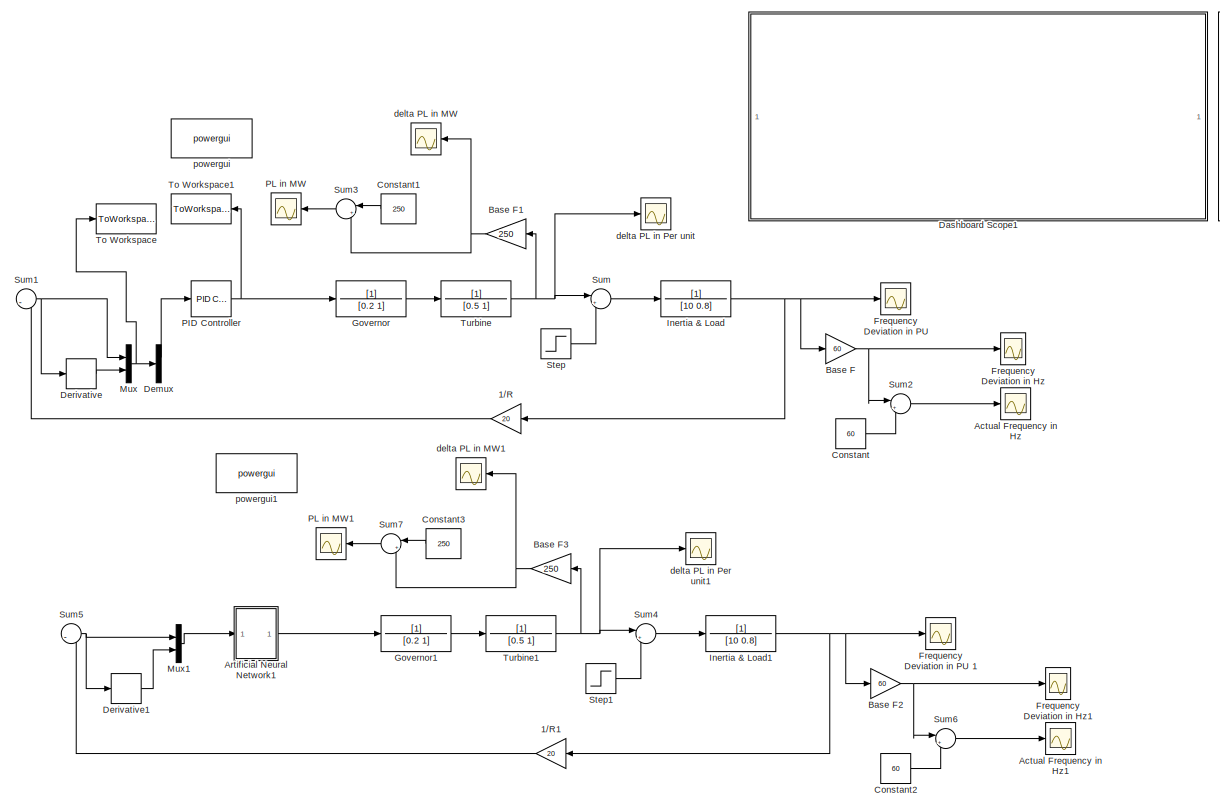
[diagram: root canvas - part 1/2, center side, full height]
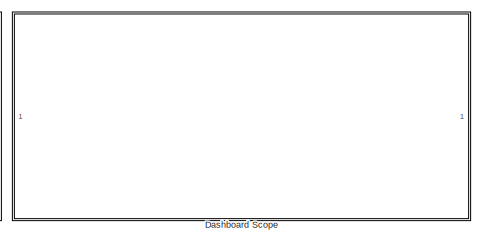
[diagram: root canvas - part 2/2, top right region]
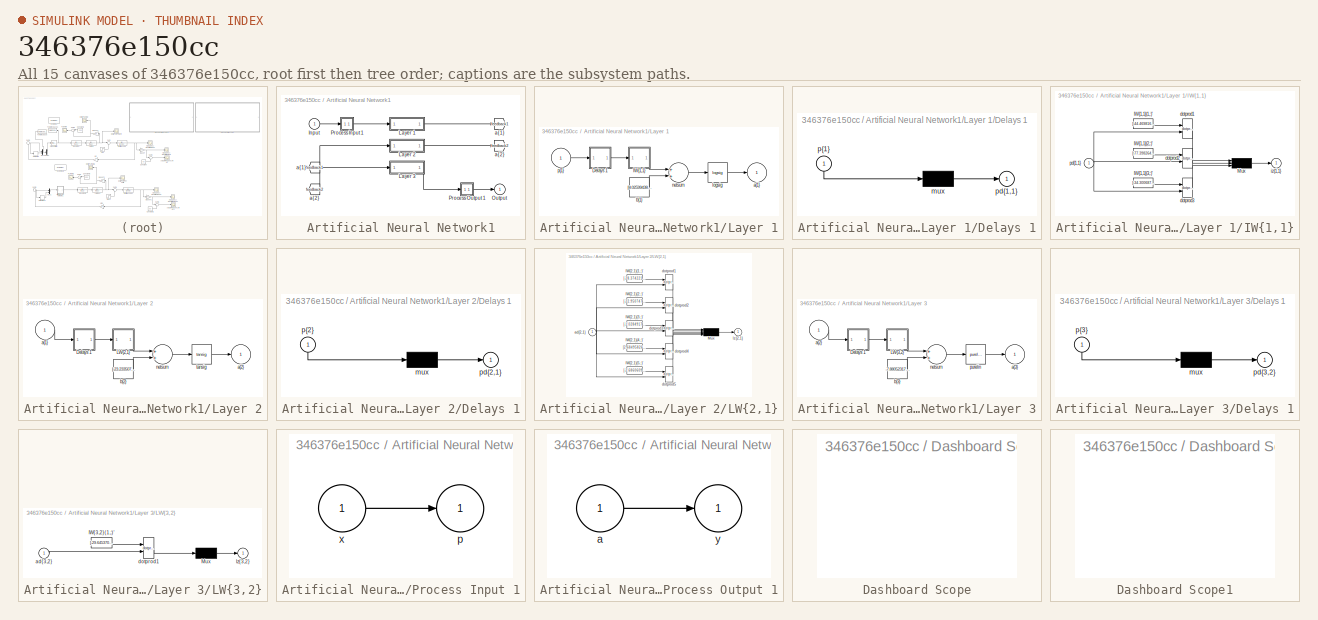
[diagram: thumbnail index - all 15 canvases of the model, root first then tree order]
MODEL slx_346376e150cc
KIND model
CONFIG AbsTol = auto
CONFIG EnableMultiTasking = off
CONFIG FixedStep = auto
CONFIG MaxStep = auto
CONFIG MinStep = auto
CONFIG RelTol = 1e-3
CONFIG SampleTimeConstraint = Unconstrained
CONFIG Solver = VariableStepAuto
CONFIG SolverName = VariableStepAuto
CONFIG StartTime = 0.0
CONFIG StopTime = 20
BLOCK [Gain] 1//R
  Gain = 20
  OutDataTypeStr = Inherit: Inherit via internal rule
  ParamDataTypeStr = Inherit: Inherit via internal rule
  SaturateOnIntegerOverflow = off
BLOCK [Gain] 1//R1
  Gain = 20
  OutDataTypeStr = Inherit: Inherit via internal rule
  ParamDataTypeStr = Inherit: Inherit via internal rule
  SaturateOnIntegerOverflow = off
BLOCK [Scope] Actual Frequency in Hz
  Floating = off
  NumInputPorts = 1
  Ports = [1]
  ScopeSpecificationString = Simulink.scopes.TimeScopeBlockCfg('CurrentConfiguration', extmgr.ConfigurationSet(extmgr.Configuration('Core','General UI',true),extmgr.Configuration('Core','Source UI',true),extmgr.Configuration('Sources','WiredSimulink',true,'DataLoggingVariableName','ScopeData1'),extmgr.Configuration('Visuals','Time Domain',true,'SerializedDisplays',{struct('MinYLimReal','59.23923','MaxYLimReal','60.08453','YLa...<+1369ch>
BLOCK [Scope] Actual Frequency in Hz1
  Floating = off
  NumInputPorts = 1
  Ports = [1]
  ScopeSpecificationString = Simulink.scopes.TimeScopeBlockCfg('CurrentConfiguration', extmgr.ConfigurationSet(extmgr.Configuration('Core','General UI',true),extmgr.Configuration('Core','Source UI',true),extmgr.Configuration('Sources','WiredSimulink',true,'DataLoggingVariableName','ScopeData1'),extmgr.Configuration('Visuals','Time Domain',true,'SerializedDisplays',{struct('MinYLimReal','59.23919','MaxYLimReal','60.08453','YLa...<+1369ch>
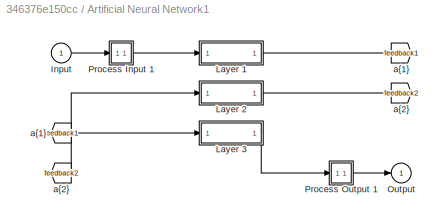
BLOCK [SubSystem] Artificial Neural Network1
  Ports = [1, 1]
  RequestExecContextInheritance = off
BLOCK [From] Artificial Neural Network1/ a{1} 
  GotoTag = feedback1
BLOCK [From] Artificial Neural Network1/ a{2} 
  GotoTag = feedback2
BLOCK [Inport] Artificial Neural Network1/Input
  IconDisplay = Port number
  PortDimensions = 2
BLOCK [SubSystem] Artificial Neural Network1/Layer 1
  Ports = [1, 1]
  RequestExecContextInheritance = off
BLOCK [SubSystem] Artificial Neural Network1/Layer 1/Delays 1
  Ports = [1, 1]
  RequestExecContextInheritance = off
BLOCK [Mux] Artificial Neural Network1/Layer 1/Delays 1/mux
  Inputs = 1
  Ports = [1, 1]
BLOCK [Outport] Artificial Neural Network1/Layer 1/Delays 1/pd{1,1}
  IconDisplay = Port number
BLOCK [Inport] Artificial Neural Network1/Layer 1/Delays 1/p{1}
  IconDisplay = Port number
  PortDimensions = 2
BLOCK [SubSystem] Artificial Neural Network1/Layer 1/IW{1,1}
  Ports = [1, 1]
  RequestExecContextInheritance = off
BLOCK [Constant] Artificial Neural Network1/Layer 1/IW{1,1}/IW{1,1}(1,:)'
  Value = [-44.4698160442586782892249175347387790679931640625;-6.704785247971184247717246762476861476898193359375]
BLOCK [Constant] Artificial Neural Network1/Layer 1/IW{1,1}/IW{1,1}(2,:)'
  Value = [-77.3982644433429385344425099901854991912841796875;12.31291218076491844612974091432988643646240234375]
BLOCK [Constant] Artificial Neural Network1/Layer 1/IW{1,1}/IW{1,1}(3,:)'
  Value = [-34.30068719563369228353622020222246646881103515625;-10.789528097987957977466066950000822544097900390625]
BLOCK [Mux] Artificial Neural Network1/Layer 1/IW{1,1}/Mux
  Inputs = 3
  Ports = [3, 1]
BLOCK [Reference] Artificial Neural Network1/Layer 1/IW{1,1}/dotprod1  REF=neural/Weight Functions/dotprod
  Ports = [2, 1]
  SourceBlock = neural/Weight Functions/dotprod
  SourceProductBaseCode = NN
  SourceProductName = Neural Network Toolbox
  SourceType = DOTPROD
BLOCK [Reference] Artificial Neural Network1/Layer 1/IW{1,1}/dotprod2  REF=neural/Weight Functions/dotprod
  Ports = [2, 1]
  SourceBlock = neural/Weight Functions/dotprod
  SourceProductBaseCode = NN
  SourceProductName = Neural Network Toolbox
  SourceType = DOTPROD
BLOCK [Reference] Artificial Neural Network1/Layer 1/IW{1,1}/dotprod3  REF=neural/Weight Functions/dotprod
  Ports = [2, 1]
  SourceBlock = neural/Weight Functions/dotprod
  SourceProductBaseCode = NN
  SourceProductName = Neural Network Toolbox
  SourceType = DOTPROD
BLOCK [Outport] Artificial Neural Network1/Layer 1/IW{1,1}/iz{1,1}
  IconDisplay = Port number
BLOCK [Inport] Artificial Neural Network1/Layer 1/IW{1,1}/pd{1,1}
  IconDisplay = Port number
  PortDimensions = 2
BLOCK [Outport] Artificial Neural Network1/Layer 1/a{1}
  IconDisplay = Port number
  InitialOutput = [0;0;0]
BLOCK [Constant] Artificial Neural Network1/Layer 1/b{1}
  Value = [8.0259943879730801796767991618253290653228759765625;-0.413920898447142082687832953524775803089141845703125;0.05236481898487994890434293893122230656445026397705078125]
BLOCK [Reference] Artificial Neural Network1/Layer 1/logsig  REF=neural/Transfer Functions/logsig
  Ports = [1, 1]
  SourceBlock = neural/Transfer Functions/logsig
  SourceProductBaseCode = NN
  SourceProductName = Neural Network Toolbox
  SourceType = LOGSIG
BLOCK [Sum] Artificial Neural Network1/Layer 1/netsum
  Inputs = 2
  Ports = [2, 1]
BLOCK [Inport] Artificial Neural Network1/Layer 1/p{1}
  IconDisplay = Port number
  PortDimensions = 2
BLOCK [SubSystem] Artificial Neural Network1/Layer 2
  Ports = [1, 1]
  RequestExecContextInheritance = off
BLOCK [SubSystem] Artificial Neural Network1/Layer 2/Delays 1
  Ports = [1, 1]
  RequestExecContextInheritance = off
BLOCK [Mux] Artificial Neural Network1/Layer 2/Delays 1/mux
  Inputs = 1
  Ports = [1, 1]
BLOCK [Outport] Artificial Neural Network1/Layer 2/Delays 1/pd{2,1}
  IconDisplay = Port number
BLOCK [Inport] Artificial Neural Network1/Layer 2/Delays 1/p{2}
  IconDisplay = Port number
  PortDimensions = 3
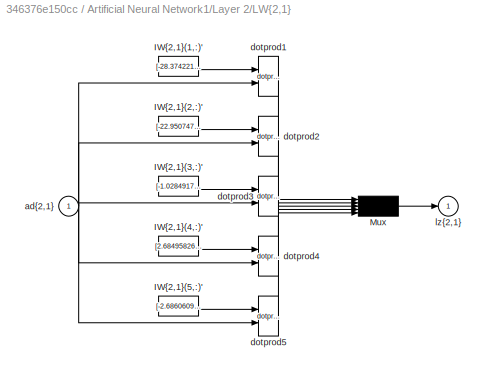
BLOCK [SubSystem] Artificial Neural Network1/Layer 2/LW{2,1}
  Ports = [1, 1]
  RequestExecContextInheritance = off
BLOCK [Constant] Artificial Neural Network1/Layer 2/LW{2,1}/IW{2,1}(1,:)'
  Value = [-28.37422126681368439449215657077729701995849609375;49.6088473045000455385888926684856414794921875;59.12111978188851679760773549787700176239013671875]
BLOCK [Constant] Artificial Neural Network1/Layer 2/LW{2,1}/IW{2,1}(2,:)'
  Value = [-22.9507474180967250276808044873178005218505859375;50.06399152652512185568411950953304767608642578125;59.62202442935639368215561262331902980804443359375]
BLOCK [Constant] Artificial Neural Network1/Layer 2/LW{2,1}/IW{2,1}(3,:)'
  Value = [-1.028491700531020125453096625278703868389129638671875;1.0548444530269189822746511708828620612621307373046875;4.0746148479657282592825140454806387424468994140625]
BLOCK [Constant] Artificial Neural Network1/Layer 2/LW{2,1}/IW{2,1}(4,:)'
  Value = [2.684958268117673352293195421225391328334808349609375;-1.1706233024163241740467356066801585257053375244140625;-3.777968547499659823785123080597259104251861572265625]
BLOCK [Constant] Artificial Neural Network1/Layer 2/LW{2,1}/IW{2,1}(5,:)'
  Value = [-2.686060979397518533318134359433315694332122802734375;-5.24214319065292055910276758368127048015594482421875;-9.6136112686197616739036675426177680492401123046875]
BLOCK [Mux] Artificial Neural Network1/Layer 2/LW{2,1}/Mux
  Inputs = 5
  Ports = [5, 1]
BLOCK [Inport] Artificial Neural Network1/Layer 2/LW{2,1}/ad{2,1}
  IconDisplay = Port number
  PortDimensions = 3
BLOCK [Reference] Artificial Neural Network1/Layer 2/LW{2,1}/dotprod1  REF=neural/Weight Functions/dotprod
  Ports = [2, 1]
  SourceBlock = neural/Weight Functions/dotprod
  SourceProductBaseCode = NN
  SourceProductName = Neural Network Toolbox
  SourceType = DOTPROD
BLOCK [Reference] Artificial Neural Network1/Layer 2/LW{2,1}/dotprod2  REF=neural/Weight Functions/dotprod
  Ports = [2, 1]
  SourceBlock = neural/Weight Functions/dotprod
  SourceProductBaseCode = NN
  SourceProductName = Neural Network Toolbox
  SourceType = DOTPROD
BLOCK [Reference] Artificial Neural Network1/Layer 2/LW{2,1}/dotprod3  REF=neural/Weight Functions/dotprod
  Ports = [2, 1]
  SourceBlock = neural/Weight Functions/dotprod
  SourceProductBaseCode = NN
  SourceProductName = Neural Network Toolbox
  SourceType = DOTPROD
BLOCK [Reference] Artificial Neural Network1/Layer 2/LW{2,1}/dotprod4  REF=neural/Weight Functions/dotprod
  Ports = [2, 1]
  SourceBlock = neural/Weight Functions/dotprod
  SourceProductBaseCode = NN
  SourceProductName = Neural Network Toolbox
  SourceType = DOTPROD
BLOCK [Reference] Artificial Neural Network1/Layer 2/LW{2,1}/dotprod5  REF=neural/Weight Functions/dotprod
  Ports = [2, 1]
  SourceBlock = neural/Weight Functions/dotprod
  SourceProductBaseCode = NN
  SourceProductName = Neural Network Toolbox
  SourceType = DOTPROD
BLOCK [Outport] Artificial Neural Network1/Layer 2/LW{2,1}/lz{2,1}
  IconDisplay = Port number
BLOCK [Inport] Artificial Neural Network1/Layer 2/a{1} 
  IconDisplay = Port number
  PortDimensions = 3
BLOCK [Outport] Artificial Neural Network1/Layer 2/a{2}
  IconDisplay = Port number
  InitialOutput = [0;0;0;0;0]
BLOCK [Constant] Artificial Neural Network1/Layer 2/b{2}
  Value = [-23.233507337629571765091895940713584423065185546875;-28.4702870967646362032610340975224971771240234375;-3.13457157216795767595840516150929033756256103515625;1.24505500083821463164213128038682043552398681640625;-1.2175821338483923117479434949927963316440582275390625]
BLOCK [Sum] Artificial Neural Network1/Layer 2/netsum
  Inputs = 2
  Ports = [2, 1]
BLOCK [Reference] Artificial Neural Network1/Layer 2/tansig  REF=neural/Transfer Functions/tansig
  Ports = [1, 1]
  SourceBlock = neural/Transfer Functions/tansig
  SourceProductBaseCode = NN
  SourceProductName = Neural Network Toolbox
  SourceType = TANSIG
BLOCK [SubSystem] Artificial Neural Network1/Layer 3
  Ports = [1, 1]
  RequestExecContextInheritance = off
BLOCK [SubSystem] Artificial Neural Network1/Layer 3/Delays 1
  Ports = [1, 1]
  RequestExecContextInheritance = off
BLOCK [Mux] Artificial Neural Network1/Layer 3/Delays 1/mux
  Inputs = 1
  Ports = [1, 1]
BLOCK [Outport] Artificial Neural Network1/Layer 3/Delays 1/pd{3,2}
  IconDisplay = Port number
BLOCK [Inport] Artificial Neural Network1/Layer 3/Delays 1/p{3}
  IconDisplay = Port number
  PortDimensions = 5
BLOCK [SubSystem] Artificial Neural Network1/Layer 3/LW{3,2}
  Ports = [1, 1]
  RequestExecContextInheritance = off
BLOCK [Constant] Artificial Neural Network1/Layer 3/LW{3,2}/IW{3,2}(1,:)'
  Value = [-29.645370634527598241447776672430336475372314453125;8.789806394185877280733620864339172840118408203125;13.4893734203719741771010376396588981151580810546875;10.649224522824564331813235185109078884124755859375;9.9280888007775889292361171101219952106475830078125]
BLOCK [Mux] Artificial Neural Network1/Layer 3/LW{3,2}/Mux
  Inputs = 1
  Ports = [1, 1]
BLOCK [Inport] Artificial Neural Network1/Layer 3/LW{3,2}/ad{3,2}
  IconDisplay = Port number
  PortDimensions = 5
BLOCK [Reference] Artificial Neural Network1/Layer 3/LW{3,2}/dotprod1  REF=neural/Weight Functions/dotprod
  Ports = [2, 1]
  SourceBlock = neural/Weight Functions/dotprod
  SourceProductBaseCode = NN
  SourceProductName = Neural Network Toolbox
  SourceType = DOTPROD
BLOCK [Outport] Artificial Neural Network1/Layer 3/LW{3,2}/lz{3,2}
  IconDisplay = Port number
BLOCK [Inport] Artificial Neural Network1/Layer 3/a{2} 
  IconDisplay = Port number
  PortDimensions = 5
BLOCK [Outport] Artificial Neural Network1/Layer 3/a{3}
  IconDisplay = Port number
  InitialOutput = 0
BLOCK [Constant] Artificial Neural Network1/Layer 3/b{3}
  Value = -7.88052317236014321366610602126456797122955322265625
BLOCK [Sum] Artificial Neural Network1/Layer 3/netsum
  Inputs = 2
  Ports = [2, 1]
BLOCK [Reference] Artificial Neural Network1/Layer 3/purelin  REF=neural/Transfer Functions/purelin
  Ports = [1, 1]
  SourceBlock = neural/Transfer Functions/purelin
  SourceProductBaseCode = NN
  SourceProductName = Neural Network Toolbox
  SourceType = PURELIN
BLOCK [Outport] Artificial Neural Network1/Output
  IconDisplay = Port number
  InitialOutput = 0
BLOCK [SubSystem] Artificial Neural Network1/Process Input 1
  Ports = [1, 1]
  RequestExecContextInheritance = off
BLOCK [Outport] Artificial Neural Network1/Process Input 1/p
  IconDisplay = Port number
  PortDimensions = 2
BLOCK [Inport] Artificial Neural Network1/Process Input 1/x
  IconDisplay = Port number
  PortDimensions = 2
BLOCK [SubSystem] Artificial Neural Network1/Process Output 1
  Ports = [1, 1]
  RequestExecContextInheritance = off
BLOCK [Inport] Artificial Neural Network1/Process Output 1/a
  IconDisplay = Port number
  PortDimensions = 1
BLOCK [Outport] Artificial Neural Network1/Process Output 1/y
  IconDisplay = Port number
  PortDimensions = 1
BLOCK [Goto] Artificial Neural Network1/a{1}
  GotoTag = feedback1
BLOCK [Goto] Artificial Neural Network1/a{2}
  GotoTag = feedback2
BLOCK [Gain] Base F
  Gain = 60
  OutDataTypeStr = Inherit: Inherit via internal rule
  ParamDataTypeStr = Inherit: Inherit via internal rule
  SaturateOnIntegerOverflow = off
BLOCK [Gain] Base F1
  Gain = 250
  OutDataTypeStr = Inherit: Inherit via internal rule
  ParamDataTypeStr = Inherit: Inherit via internal rule
  SaturateOnIntegerOverflow = off
BLOCK [Gain] Base F2
  Gain = 60
  OutDataTypeStr = Inherit: Inherit via internal rule
  ParamDataTypeStr = Inherit: Inherit via internal rule
  SaturateOnIntegerOverflow = off
BLOCK [Gain] Base F3
  Gain = 250
  OutDataTypeStr = Inherit: Inherit via internal rule
  ParamDataTypeStr = Inherit: Inherit via internal rule
  SaturateOnIntegerOverflow = off
BLOCK [Constant] Constant
  Value = 60
BLOCK [Constant] Constant1
  Value = 250
BLOCK [Constant] Constant2
  Value = 60
BLOCK [Constant] Constant3
  Value = 250
BLOCK [SubSystem] Dashboard Scope
  DialogController = hmiCreateDDGDialog
  IsWebBlock = on
  MaskHideContents = on
  Ports = []
  RequestExecContextInheritance = off
BLOCK [SubSystem] Dashboard Scope1
  DialogController = hmiCreateDDGDialog
  IsWebBlock = on
  MaskHideContents = on
  Ports = []
  RequestExecContextInheritance = off
BLOCK [Demux] Demux
  DisplayOption = bar
  Outputs = 2
  Ports = [1, 2]
BLOCK [Derivative] Derivative
BLOCK [Derivative] Derivative1
BLOCK [Scope] Frequency Deviation in Hz
  Floating = off
  NumInputPorts = 1
  Ports = [1]
  ScopeSpecificationString = Simulink.scopes.TimeScopeBlockCfg('CurrentConfiguration', extmgr.ConfigurationSet(extmgr.Configuration('Core','General UI',true),extmgr.Configuration('Core','Source UI',true),extmgr.Configuration('Sources','WiredSimulink',true,'DataLoggingVariableName','ScopeData1'),extmgr.Configuration('Visuals','Time Domain',true,'SerializedDisplays',{struct('MinYLimReal','-0.76077','MaxYLimReal','0.08453','YLab...<+1365ch>
BLOCK [Scope] Frequency Deviation in Hz1
  Floating = off
  NumInputPorts = 1
  Ports = [1]
  ScopeSpecificationString = Simulink.scopes.TimeScopeBlockCfg('CurrentConfiguration', extmgr.ConfigurationSet(extmgr.Configuration('Core','General UI',true),extmgr.Configuration('Core','Source UI',true),extmgr.Configuration('Sources','WiredSimulink',true,'DataLoggingVariableName','ScopeData2'),extmgr.Configuration('Visuals','Time Domain',true,'SerializedDisplays',{struct('MinYLimReal','-0.76081','MaxYLimReal','0.08453','YLab...<+1365ch>
BLOCK [Scope] Frequency Deviation in PU 
  Floating = off
  NumInputPorts = 1
  Ports = [1]
  ScopeSpecificationString = Simulink.scopes.TimeScopeBlockCfg('CurrentConfiguration', extmgr.ConfigurationSet(extmgr.Configuration('Core','General UI',true),extmgr.Configuration('Core','Source UI',true),extmgr.Configuration('Sources','WiredSimulink',true),extmgr.Configuration('Visuals','Time Domain',true,'SerializedDisplays',{struct('MinYLimReal','-0.01268','MaxYLimReal','0.00141','YLabelReal','','MinYLimMag','0.00000','MaxY...<+1334ch>
BLOCK [Scope] Frequency Deviation in PU 1
  Floating = off
  NumInputPorts = 1
  Ports = [1]
  ScopeSpecificationString = Simulink.scopes.TimeScopeBlockCfg('CurrentConfiguration', extmgr.ConfigurationSet(extmgr.Configuration('Core','General UI',true),extmgr.Configuration('Core','Source UI',true),extmgr.Configuration('Sources','WiredSimulink',true,'DataLoggingVariableName','ScopeData3'),extmgr.Configuration('Visuals','Time Domain',true,'SerializedDisplays',{struct('MinYLimReal','-0.01268','MaxYLimReal','0.00141','YLab...<+1373ch>
BLOCK [TransferFcn] Governor
  Denominator = [0.2 1]
BLOCK [TransferFcn] Governor1
  Denominator = [0.2 1]
BLOCK [TransferFcn] Inertia & Load
  Denominator = [10 0.8]
BLOCK [TransferFcn] Inertia & Load1
  Denominator = [10 0.8]
BLOCK [Mux] Mux
  DisplayOption = bar
  Inputs = 2
  Ports = [2, 1]
BLOCK [Mux] Mux1
  DisplayOption = bar
  Inputs = 2
  Ports = [2, 1]
BLOCK [Reference] PID Controller  REF=simulink/Continuous/PID Controller
  Ports = [1, 1]
  SourceBlock = simulink/Continuous/PID Controller
  SourceProductBaseCode = SL
  SourceProductName = Simulink
  SourceType = PID 1dof
BLOCK [Scope] PL in MW
  Floating = off
  NumInputPorts = 1
  Ports = [1]
  ScopeSpecificationString = Simulink.scopes.TimeScopeBlockCfg('CurrentConfiguration', extmgr.ConfigurationSet(extmgr.Configuration('Core','General UI',true),extmgr.Configuration('Core','Source UI',true),extmgr.Configuration('Sources','WiredSimulink',true,'DataLoggingVariableName','ScopeData4'),extmgr.Configuration('Visuals','Time Domain',true,'SerializedDisplays',{struct('MinYLimReal','239.76616','MaxYLimReal','342.10456','Y...<+1404ch>
BLOCK [Scope] PL in MW1
  Floating = off
  NumInputPorts = 1
  Ports = [1]
  ScopeSpecificationString = Simulink.scopes.TimeScopeBlockCfg('CurrentConfiguration', extmgr.ConfigurationSet(extmgr.Configuration('Core','General UI',true),extmgr.Configuration('Core','Source UI',true),extmgr.Configuration('Sources','WiredSimulink',true,'DataLoggingVariableName','ScopeData4'),extmgr.Configuration('Visuals','Time Domain',true,'SerializedDisplays',{struct('MinYLimReal','239.76616','MaxYLimReal','342.10456','Y...<+1404ch>
BLOCK [Step] Step
  After = 0.2
  Before = 0.2
  SampleTime = 0
  Time = 100
BLOCK [Step] Step1
  After = 0.2
  Before = 0.2
  SampleTime = 0
  Time = 100
BLOCK [Sum] Sum
  IconShape = round
  InputSameDT = off
  Inputs = |+-
  OutDataTypeStr = Inherit: Inherit via internal rule
  Ports = [2, 1]
  SaturateOnIntegerOverflow = off
BLOCK [Sum] Sum1
  IconShape = round
  InputSameDT = off
  Inputs = |-
  OutDataTypeStr = Inherit: Inherit via internal rule
  Ports = [1, 1]
  SaturateOnIntegerOverflow = off
BLOCK [Sum] Sum2
  IconShape = round
  InputSameDT = off
  Inputs = |++
  OutDataTypeStr = Inherit: Inherit via internal rule
  Ports = [2, 1]
  SaturateOnIntegerOverflow = off
BLOCK [Sum] Sum3
  IconShape = round
  InputSameDT = off
  Inputs = |++
  OutDataTypeStr = Inherit: Inherit via internal rule
  Ports = [2, 1]
  SaturateOnIntegerOverflow = off
BLOCK [Sum] Sum4
  IconShape = round
  InputSameDT = off
  Inputs = |+-
  OutDataTypeStr = Inherit: Inherit via internal rule
  Ports = [2, 1]
  SaturateOnIntegerOverflow = off
BLOCK [Sum] Sum5
  IconShape = round
  InputSameDT = off
  Inputs = |-
  OutDataTypeStr = Inherit: Inherit via internal rule
  Ports = [1, 1]
  SaturateOnIntegerOverflow = off
BLOCK [Sum] Sum6
  IconShape = round
  InputSameDT = off
  Inputs = |++
  OutDataTypeStr = Inherit: Inherit via internal rule
  Ports = [2, 1]
  SaturateOnIntegerOverflow = off
BLOCK [Sum] Sum7
  IconShape = round
  InputSameDT = off
  Inputs = |++
  OutDataTypeStr = Inherit: Inherit via internal rule
  Ports = [2, 1]
  SaturateOnIntegerOverflow = off
BLOCK [ToWorkspace] To Workspace
  FixptAsFi = on
  MaxDataPoints = inf
  Ports = [1]
  SampleTime = -1
  Save2DSignal = 3-D array (concatenate along third dimension)
  VariableName = input
BLOCK [ToWorkspace] To Workspace1
  FixptAsFi = on
  MaxDataPoints = inf
  Ports = [1]
  SampleTime = -1
  Save2DSignal = 3-D array (concatenate along third dimension)
  VariableName = output
BLOCK [TransferFcn] Turbine
  Denominator = [0.5 1]
BLOCK [TransferFcn] Turbine1
  Denominator = [0.5 1]
BLOCK [Scope] delta PL in MW
  Floating = off
  NumInputPorts = 1
  Ports = [1]
  ScopeSpecificationString = Simulink.scopes.TimeScopeBlockCfg('CurrentConfiguration', extmgr.ConfigurationSet(extmgr.Configuration('Core','General UI',true),extmgr.Configuration('Core','Source UI',true),extmgr.Configuration('Sources','WiredSimulink',true,'DataLoggingVariableName','ScopeData3'),extmgr.Configuration('Visuals','Time Domain',true),extmgr.Configuration('Tools','Plot Navigation',true),extmgr.Configuration('Tools',...<+40ch>
BLOCK [Scope] delta PL in MW1
  Floating = off
  NumInputPorts = 1
  Ports = [1]
  ScopeSpecificationString = Simulink.scopes.TimeScopeBlockCfg('CurrentConfiguration', extmgr.ConfigurationSet(extmgr.Configuration('Core','General UI',true),extmgr.Configuration('Core','Source UI',true),extmgr.Configuration('Sources','WiredSimulink',true,'DataLoggingVariableName','ScopeData5'),extmgr.Configuration('Visuals','Time Domain',true),extmgr.Configuration('Tools','Plot Navigation',true),extmgr.Configuration('Tools',...<+40ch>
BLOCK [Scope] delta PL in Per unit
  Floating = off
  NumInputPorts = 1
  Ports = [1]
  ScopeSpecificationString = Simulink.scopes.TimeScopeBlockCfg('CurrentConfiguration', extmgr.ConfigurationSet(extmgr.Configuration('Core','General UI',true),extmgr.Configuration('Core','Source UI',true),extmgr.Configuration('Sources','WiredSimulink',true,'DataLoggingVariableName','ScopeData2'),extmgr.Configuration('Visuals','Time Domain',true,'SerializedDisplays',{struct('MinYLimReal','-0.02704','MaxYLimReal','0.24333','YLab...<+1393ch>
BLOCK [Scope] delta PL in Per unit1
  Floating = off
  NumInputPorts = 1
  Ports = [1]
  ScopeSpecificationString = Simulink.scopes.TimeScopeBlockCfg('CurrentConfiguration', extmgr.ConfigurationSet(extmgr.Configuration('Core','General UI',true),extmgr.Configuration('Core','Source UI',true),extmgr.Configuration('Sources','WiredSimulink',true,'DataLoggingVariableName','ScopeData6'),extmgr.Configuration('Visuals','Time Domain',true,'SerializedDisplays',{struct('MinYLimReal','-0.02704','MaxYLimReal','0.24333','YLab...<+1393ch>
BLOCK [Reference] powergui  REF=powerlib/powergui
  Ports = []
  Priority = 1
  SourceBlock = powerlib/powergui
  SourceProductBaseCode = PS
  SourceProductName = Simscape Power Systems
  SourceType = PSB option menu block
BLOCK [Reference] powergui1  REF=powerlib/powergui
  Ports = []
  Priority = 1
  SourceBlock = powerlib/powergui
  SourceProductBaseCode = PS
  SourceProductName = Simscape Power Systems
  SourceType = PSB option menu block
LINE 1//R1:1 -> Sum5:1
LINE 1//R:1 -> Sum1:1
LINE Artificial Neural Network1/ a{1} :1 -> Artificial Neural Network1/Layer 2:1
LINE Artificial Neural Network1/ a{2} :1 -> Artificial Neural Network1/Layer 3:1
LINE Artificial Neural Network1/Input:1 -> Artificial Neural Network1/Process Input 1:1
LINE Artificial Neural Network1/Layer 1/Delays 1/mux:1 -> Artificial Neural Network1/Layer 1/Delays 1/pd{1,1}:1
LINE Artificial Neural Network1/Layer 1/Delays 1/p{1}:1 -> Artificial Neural Network1/Layer 1/Delays 1/mux:1
LINE Artificial Neural Network1/Layer 1/Delays 1:1 -> Artificial Neural Network1/Layer 1/IW{1,1}:1
LINE Artificial Neural Network1/Layer 1/IW{1,1}/IW{1,1}(1,:)':1 -> Artificial Neural Network1/Layer 1/IW{1,1}/dotprod1:1
LINE Artificial Neural Network1/Layer 1/IW{1,1}/IW{1,1}(2,:)':1 -> Artificial Neural Network1/Layer 1/IW{1,1}/dotprod2:1
LINE Artificial Neural Network1/Layer 1/IW{1,1}/IW{1,1}(3,:)':1 -> Artificial Neural Network1/Layer 1/IW{1,1}/dotprod3:1
LINE Artificial Neural Network1/Layer 1/IW{1,1}/Mux:1 -> Artificial Neural Network1/Layer 1/IW{1,1}/iz{1,1}:1
LINE Artificial Neural Network1/Layer 1/IW{1,1}/dotprod1:1 -> Artificial Neural Network1/Layer 1/IW{1,1}/Mux:1
LINE Artificial Neural Network1/Layer 1/IW{1,1}/dotprod2:1 -> Artificial Neural Network1/Layer 1/IW{1,1}/Mux:2
LINE Artificial Neural Network1/Layer 1/IW{1,1}/dotprod3:1 -> Artificial Neural Network1/Layer 1/IW{1,1}/Mux:3
NET Artificial Neural Network1/Layer 1/IW{1,1}/pd{1,1}:1 -> Artificial Neural Network1/Layer 1/IW{1,1}/dotprod1:2, Artificial Neural Network1/Layer 1/IW{1,1}/dotprod2:2, Artificial Neural Network1/Layer 1/IW{1,1}/dotprod3:2
LINE Artificial Neural Network1/Layer 1/IW{1,1}:1 -> Artificial Neural Network1/Layer 1/netsum:1
LINE Artificial Neural Network1/Layer 1/b{1}:1 -> Artificial Neural Network1/Layer 1/netsum:2
LINE Artificial Neural Network1/Layer 1/logsig:1 -> Artificial Neural Network1/Layer 1/a{1}:1
LINE Artificial Neural Network1/Layer 1/netsum:1 -> Artificial Neural Network1/Layer 1/logsig:1
LINE Artificial Neural Network1/Layer 1/p{1}:1 -> Artificial Neural Network1/Layer 1/Delays 1:1
LINE Artificial Neural Network1/Layer 1:1 -> Artificial Neural Network1/a{1}:1
LINE Artificial Neural Network1/Layer 2/Delays 1/mux:1 -> Artificial Neural Network1/Layer 2/Delays 1/pd{2,1}:1
LINE Artificial Neural Network1/Layer 2/Delays 1/p{2}:1 -> Artificial Neural Network1/Layer 2/Delays 1/mux:1
LINE Artificial Neural Network1/Layer 2/Delays 1:1 -> Artificial Neural Network1/Layer 2/LW{2,1}:1
LINE Artificial Neural Network1/Layer 2/LW{2,1}/IW{2,1}(1,:)':1 -> Artificial Neural Network1/Layer 2/LW{2,1}/dotprod1:1
LINE Artificial Neural Network1/Layer 2/LW{2,1}/IW{2,1}(2,:)':1 -> Artificial Neural Network1/Layer 2/LW{2,1}/dotprod2:1
LINE Artificial Neural Network1/Layer 2/LW{2,1}/IW{2,1}(3,:)':1 -> Artificial Neural Network1/Layer 2/LW{2,1}/dotprod3:1
LINE Artificial Neural Network1/Layer 2/LW{2,1}/IW{2,1}(4,:)':1 -> Artificial Neural Network1/Layer 2/LW{2,1}/dotprod4:1
LINE Artificial Neural Network1/Layer 2/LW{2,1}/IW{2,1}(5,:)':1 -> Artificial Neural Network1/Layer 2/LW{2,1}/dotprod5:1
LINE Artificial Neural Network1/Layer 2/LW{2,1}/Mux:1 -> Artificial Neural Network1/Layer 2/LW{2,1}/lz{2,1}:1
NET Artificial Neural Network1/Layer 2/LW{2,1}/ad{2,1}:1 -> Artificial Neural Network1/Layer 2/LW{2,1}/dotprod1:2, Artificial Neural Network1/Layer 2/LW{2,1}/dotprod2:2, Artificial Neural Network1/Layer 2/LW{2,1}/dotprod3:2, Artificial Neural Network1/Layer 2/LW{2,1}/dotprod4:2, Artificial Neural Network1/Layer 2/LW{2,1}/dotprod5:2
LINE Artificial Neural Network1/Layer 2/LW{2,1}/dotprod1:1 -> Artificial Neural Network1/Layer 2/LW{2,1}/Mux:1
LINE Artificial Neural Network1/Layer 2/LW{2,1}/dotprod2:1 -> Artificial Neural Network1/Layer 2/LW{2,1}/Mux:2
LINE Artificial Neural Network1/Layer 2/LW{2,1}/dotprod3:1 -> Artificial Neural Network1/Layer 2/LW{2,1}/Mux:3
LINE Artificial Neural Network1/Layer 2/LW{2,1}/dotprod4:1 -> Artificial Neural Network1/Layer 2/LW{2,1}/Mux:4
LINE Artificial Neural Network1/Layer 2/LW{2,1}/dotprod5:1 -> Artificial Neural Network1/Layer 2/LW{2,1}/Mux:5
LINE Artificial Neural Network1/Layer 2/LW{2,1}:1 -> Artificial Neural Network1/Layer 2/netsum:1
LINE Artificial Neural Network1/Layer 2/a{1} :1 -> Artificial Neural Network1/Layer 2/Delays 1:1
LINE Artificial Neural Network1/Layer 2/b{2}:1 -> Artificial Neural Network1/Layer 2/netsum:2
LINE Artificial Neural Network1/Layer 2/netsum:1 -> Artificial Neural Network1/Layer 2/tansig:1
LINE Artificial Neural Network1/Layer 2/tansig:1 -> Artificial Neural Network1/Layer 2/a{2}:1
LINE Artificial Neural Network1/Layer 2:1 -> Artificial Neural Network1/a{2}:1
LINE Artificial Neural Network1/Layer 3/Delays 1/mux:1 -> Artificial Neural Network1/Layer 3/Delays 1/pd{3,2}:1
LINE Artificial Neural Network1/Layer 3/Delays 1/p{3}:1 -> Artificial Neural Network1/Layer 3/Delays 1/mux:1
LINE Artificial Neural Network1/Layer 3/Delays 1:1 -> Artificial Neural Network1/Layer 3/LW{3,2}:1
LINE Artificial Neural Network1/Layer 3/LW{3,2}/IW{3,2}(1,:)':1 -> Artificial Neural Network1/Layer 3/LW{3,2}/dotprod1:1
LINE Artificial Neural Network1/Layer 3/LW{3,2}/Mux:1 -> Artificial Neural Network1/Layer 3/LW{3,2}/lz{3,2}:1
LINE Artificial Neural Network1/Layer 3/LW{3,2}/ad{3,2}:1 -> Artificial Neural Network1/Layer 3/LW{3,2}/dotprod1:2
LINE Artificial Neural Network1/Layer 3/LW{3,2}/dotprod1:1 -> Artificial Neural Network1/Layer 3/LW{3,2}/Mux:1
LINE Artificial Neural Network1/Layer 3/LW{3,2}:1 -> Artificial Neural Network1/Layer 3/netsum:1
LINE Artificial Neural Network1/Layer 3/a{2} :1 -> Artificial Neural Network1/Layer 3/Delays 1:1
LINE Artificial Neural Network1/Layer 3/b{3}:1 -> Artificial Neural Network1/Layer 3/netsum:2
LINE Artificial Neural Network1/Layer 3/netsum:1 -> Artificial Neural Network1/Layer 3/purelin:1
LINE Artificial Neural Network1/Layer 3/purelin:1 -> Artificial Neural Network1/Layer 3/a{3}:1
LINE Artificial Neural Network1/Layer 3:1 -> Artificial Neural Network1/Process Output 1:1
LINE Artificial Neural Network1/Process Input 1/x:1 -> Artificial Neural Network1/Process Input 1/p:1
LINE Artificial Neural Network1/Process Input 1:1 -> Artificial Neural Network1/Layer 1:1
LINE Artificial Neural Network1/Process Output 1/a:1 -> Artificial Neural Network1/Process Output 1/y:1
LINE Artificial Neural Network1/Process Output 1:1 -> Artificial Neural Network1/Output:1
LINE Artificial Neural Network1:1 -> Governor1:1
NET Base F1:1 -> Sum3:2, delta PL in MW:1
NET Base F2:1 -> Frequency Deviation in Hz1:1, Sum6:1
NET Base F3:1 -> Sum7:2, delta PL in MW1:1
NET Base F:1 -> Frequency Deviation in Hz:1, Sum2:1
LINE Constant1:1 -> Sum3:1
LINE Constant2:1 -> Sum6:2
LINE Constant3:1 -> Sum7:1
LINE Constant:1 -> Sum2:2
LINE Demux:1 -> PID Controller:1
LINE Derivative1:1 -> Mux1:2
LINE Derivative:1 -> Mux:2
LINE Governor1:1 -> Turbine1:1
LINE Governor:1 -> Turbine:1
NET Inertia & Load1:1 -> 1//R1:1, Base F2:1, Frequency Deviation in PU 1:1
NET Inertia & Load:1 -> 1//R:1, Base F:1, Frequency Deviation in PU :1
LINE Mux1:1 -> Artificial Neural Network1:1
NET Mux:1 -> Demux:1, To Workspace:1
NET PID Controller:1 -> Governor:1, To Workspace1:1
LINE Step1:1 -> Sum4:2
LINE Step:1 -> Sum:2
NET Sum1:1 -> Derivative:1, Mux:1
LINE Sum2:1 -> Actual Frequency in Hz:1
LINE Sum3:1 -> PL in MW:1
LINE Sum4:1 -> Inertia & Load1:1
NET Sum5:1 -> Derivative1:1, Mux1:1
LINE Sum6:1 -> Actual Frequency in Hz1:1
LINE Sum7:1 -> PL in MW1:1
LINE Sum:1 -> Inertia & Load:1
NET Turbine1:1 -> Base F3:1, Sum4:1, delta PL in Per unit1:1
NET Turbine:1 -> Base F1:1, Sum:1, delta PL in Per unit:1
note: NET lines group one-source signal fan-out (src -> all destinations, sorted); 1:1 wires keep LINE
